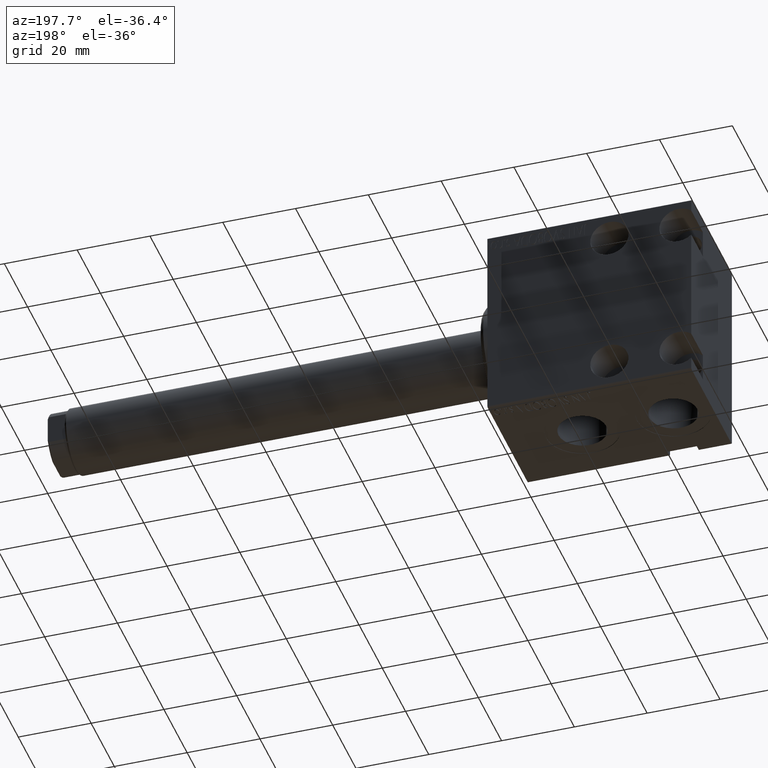
[diagram: clean part render]
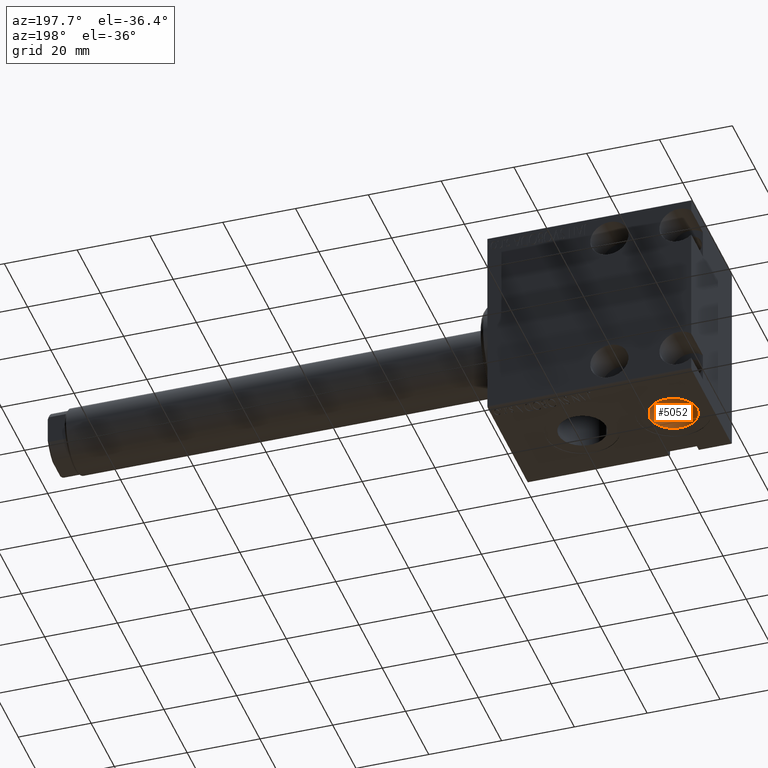
[diagram: same view with one face highlighted and labeled with its STEP entity id]
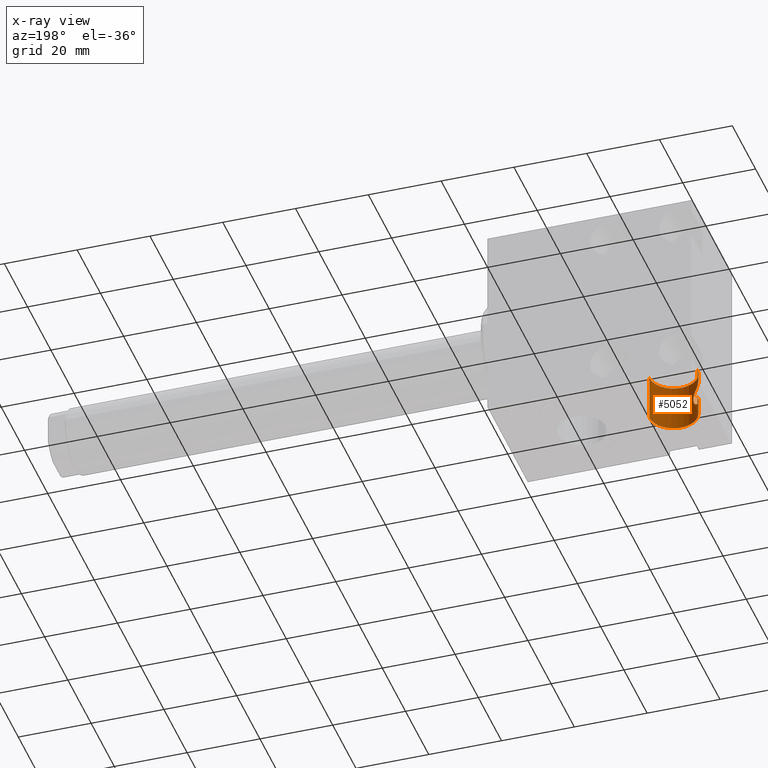
[diagram: x-ray of the same camera — body ghosted, the highlighted face saturated]
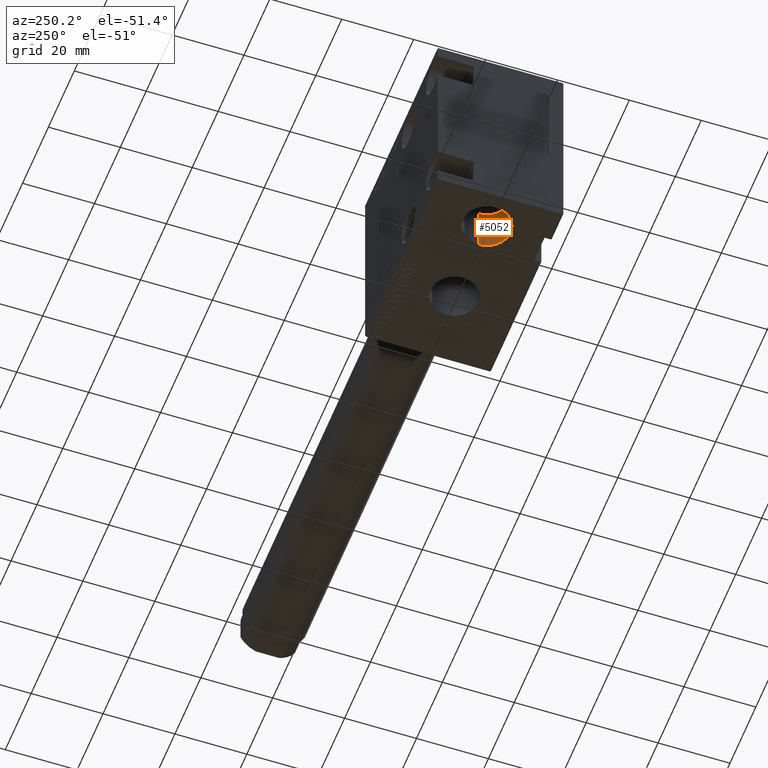
[diagram: same view with one face highlighted and labeled with its STEP entity id]
A machine part, auxiliary view. The second image highlights one B-rep face of the part: STEP entity #5052.
The next image is the same camera in x-ray: the body ghosted, the highlighted face saturated — about 1% of this face is hidden behind the body in this view.
A second angle (auxiliary view) of the same face is appended — the face is thin or edge-on in the first view.
In plain terms, the highlighted cylindrical surface (edge-blend (fillet) strip) has radius 6.58 mm, axis along (-0, 0, -1).
Its self-contained STEP definition (entity closure, byte-faithful):
#33 = CARTESIAN_POINT ( 'NONE',  ( 49.97893463888712517, 4.822081745161653110, -17.94414762556919030 ) ) ;
#106 = VERTEX_POINT ( 'NONE', #6949 ) ;
#248 = CARTESIAN_POINT ( 'NONE',  ( 50.26324171798150076, 4.541858146288443088, -17.63866551675688399 ) ) ;
#256 = VECTOR ( 'NONE', #42723, 1000.000000000000000 ) ;
#464 = CARTESIAN_POINT ( 'NONE',  ( 49.31159436465515711, 5.363680480734243083, -19.34892535383430001 ) ) ;
#676 = CARTESIAN_POINT ( 'NONE',  ( 52.07999999999999829, -4.982785615329280656E-15, -23.22274727522962579 ) ) ;
#1010 = VERTEX_POINT ( 'NONE', #39346 ) ;
#2985 = LINE ( 'NONE', #39899, #256 ) ;
#3312 = CARTESIAN_POINT ( 'NONE',  ( 52.07999999999999829, -5.944845806260188257E-15, -16.77725272477036711 ) ) ;
#3523 = CARTESIAN_POINT ( 'NONE',  ( 50.16605431984694974, 4.641256827701073284, -17.73394680059119466 ) ) ;
#3730 = CARTESIAN_POINT ( 'NONE',  ( 50.55315012297781863, 4.224246935768990241, -17.38499939348683654 ) ) ;
#4159 = CARTESIAN_POINT ( 'NONE',  ( 52.08000000000000540, 0.3310651701672402414, -23.22274727522962934 ) ) ;
#4321 = ORIENTED_EDGE ( 'NONE', *, *, #19663, .T. ) ;
#5052 = ADVANCED_FACE ( 'NONE', ( #6468 ), #7112, .F. ) ;
#5578 = EDGE_LOOP ( 'NONE', ( #19397, #20746, #35303, #12571, #36016, #4321 ) ) ;
#6468 = FACE_OUTER_BOUND ( 'NONE', #5578, .T. ) ;
#6587 = CARTESIAN_POINT ( 'NONE',  ( 49.44661169182467830, 5.265386557473822116, -18.87489598055588402 ) ) ;
#6802 = CARTESIAN_POINT ( 'NONE',  ( 51.56310192973119655, 2.577228159191529144, -23.11570318743409302 ) ) ;
#6949 = CARTESIAN_POINT ( 'NONE',  ( 38.91999999999999460, -5.788603209277299718E-15, -27.40000000000000213 ) ) ;
#7009 = CARTESIAN_POINT ( 'NONE',  ( 49.24956655112059423, 5.407138889644135027, -19.84121779064317437 ) ) ;
#7112 = CYLINDRICAL_SURFACE ( 'NONE', #32405, 6.580000000000002736 ) ;
#7222 = CARTESIAN_POINT ( 'NONE',  ( 52.05515427865749700, 0.6598028439512148013, -23.21980100920596612 ) ) ;
#7440 = CARTESIAN_POINT ( 'NONE',  ( 50.26935849136269496, 4.535453516409063468, -22.36711579894430457 ) ) ;
#9421 = AXIS2_PLACEMENT_3D ( 'NONE', #30050, #13884, #40525 ) ;
#9742 = EDGE_CURVE ( 'NONE', #12926, #32662, #10117, .T. ) ;
#9864 = CARTESIAN_POINT ( 'NONE',  ( 50.17362464172516212, 4.633617290356827567, -22.27373501052045768 ) ) ;
#10087 = CARTESIAN_POINT ( 'NONE',  ( 49.35322264741746068, 5.334124119426110866, -20.82893756483926140 ) ) ;
#10117 = CIRCLE ( 'NONE', #9421, 6.580000000000002736 ) ;
#10302 = CARTESIAN_POINT ( 'NONE',  ( 49.26198675014821760, 5.398590148528583654, -19.67581041941062026 ) ) ;
#10725 = CARTESIAN_POINT ( 'NONE',  ( 49.89663315046059466, 4.896786373188753316, -21.95129343600461880 ) ) ;
#12571 = ORIENTED_EDGE ( 'NONE', *, *, #14422, .T. ) ;
#12926 = VERTEX_POINT ( 'NONE', #15379 ) ;
#13351 = CARTESIAN_POINT ( 'NONE',  ( 51.88109536221364237, 1.639409872837848559, -23.19212115056386381 ) ) ;
#13572 = CARTESIAN_POINT ( 'NONE',  ( 51.55968756501483341, 2.585592968006736214, -16.88523190528145790 ) ) ;
#13884 = DIRECTION ( 'NONE',  ( 0.000000000000000000, 0.000000000000000000, -1.000000000000000000 ) ) ;
#13964 = CARTESIAN_POINT ( 'NONE',  ( 52.07999999999999829, -4.982785615438341465E-15, -14.50000000000000000 ) ) ;
#13995 = CARTESIAN_POINT ( 'NONE',  ( 51.27087239358852599, 3.178385785067475044, -16.98749056658380852 ) ) ;
#14422 = EDGE_CURVE ( 'NONE', #106, #33513, #40273, .T. ) ;
#15379 = CARTESIAN_POINT ( 'NONE',  ( 38.91999999999999460, -5.788603209277299718E-15, -14.50000000000000000 ) ) ;
#15705 = LINE ( 'NONE', #29026, #26538 ) ;
#16135 = DIRECTION ( 'NONE',  ( -1.000000000000000000, 0.000000000000000000, 0.000000000000000000 ) ) ;
#16626 = CARTESIAN_POINT ( 'NONE',  ( 49.25045640217459209, 5.406521716276747824, -20.17605624508707862 ) ) ;
#16685 = EDGE_CURVE ( 'NONE', #32662, #27396, #17024, .T. ) ;
#16837 = CARTESIAN_POINT ( 'NONE',  ( 49.26402932003843205, 5.397172517940136416, -20.34375458485810029 ) ) ;
#17024 = LINE ( 'NONE', #13964, #28512 ) ;
#17058 = CARTESIAN_POINT ( 'NONE',  ( 49.50220694883640249, 5.224362076535531862, -21.29735022060635075 ) ) ;
#19397 = ORIENTED_EDGE ( 'NONE', *, *, #16685, .F. ) ;
#19663 = EDGE_CURVE ( 'NONE', #1010, #27396, #21118, .T. ) ;
#19800 = DIRECTION ( 'NONE',  ( -0.000000000000000000, -0.000000000000000000, -1.000000000000000000 ) ) ;
#19917 = CARTESIAN_POINT ( 'NONE',  ( 49.50583749899756469, 5.220854135736300528, -18.72628248775956905 ) ) ;
#20099 = DIRECTION ( 'NONE',  ( -0.000000000000000000, -0.000000000000000000, -1.000000000000000000 ) ) ;
#20127 = CARTESIAN_POINT ( 'NONE',  ( 50.84332866628704295, 3.843215917744076116, -22.79791692509125767 ) ) ;
#20339 = CARTESIAN_POINT ( 'NONE',  ( 49.88942398913818010, 4.903226779246405265, -18.05839217657377205 ) ) ;
#20746 = ORIENTED_EDGE ( 'NONE', *, *, #9742, .F. ) ;
#21118 = B_SPLINE_CURVE_WITH_KNOTS ( 'NONE', 3,
 ( #676, #4159, #7222, #37377, #13351, #36944, #6802, #37153, #26890, #20127, #30158, #26666, #39789, #7440, #9864, #23610, #10725, #33437, #17058, #10087, #29949, #16837, #16626, #7009, #10302, #464, #30590, #6587, #19917, #23183, #33647, #20339, #33, #3523, #248, #3730, #24039, #40003, #13995, #13572, #27306, #33231, #36513, #40222, #30379, #3312 ),
 .UNSPECIFIED., .F., .F.,
 ( 4, 2, 2, 2, 2, 2, 2, 2, 2, 2, 2, 2, 2, 2, 2, 2, 2, 2, 2, 2, 2, 2, 4 ),
 ( 0.01581004849525909778, 0.01679723498726052450, 0.01778442147926195122, 0.01877160797126337793, 0.01975879446326480465, 0.02025238770926551801, 0.02074598095526622790, 0.02123957420126694126, 0.02173316744726765115, 0.02272035393926907787, 0.02321394718526978776, 0.02370754043127049765, 0.02420113367727121101, 0.02469472692327192437, 0.02518832016927263426, 0.02568191341527334762, 0.02617550666127405751, 0.02666909990727477087, 0.02765628639927619412, 0.02864347289127761736, 0.02963065938327903714, 0.03061784587528045692, 0.03160503236728187670 ),
 .UNSPECIFIED. ) ;
#21950 = EDGE_CURVE ( 'NONE', #12926, #106, #15705, .T. ) ;
#23183 = CARTESIAN_POINT ( 'NONE',  ( 49.64321101252517110, 5.112519386828774159, -18.44239861824675231 ) ) ;
#23610 = CARTESIAN_POINT ( 'NONE',  ( 49.98765386387972853, 4.813952563459640288, -22.06640027535239668 ) ) ;
#24039 = CARTESIAN_POINT ( 'NONE',  ( 50.74902177205232334, 3.980519429084871774, -17.25437967695921415 ) ) ;
#24641 = CARTESIAN_POINT ( 'NONE',  ( 52.07999999999999829, -4.982785615438341465E-15, -14.50000000000000000 ) ) ;
#24870 = CARTESIAN_POINT ( 'NONE',  ( 52.07999999999999829, -4.982785615438341465E-15, -27.40000000000000213 ) ) ;
#26538 = VECTOR ( 'NONE', #28802, 1000.000000000000000 ) ;
#26666 = CARTESIAN_POINT ( 'NONE',  ( 50.56109864371553186, 4.207729554179517883, -22.61082936947150301 ) ) ;
#26890 = CARTESIAN_POINT ( 'NONE',  ( 51.11132958892269329, 3.451037459945252461, -22.94545252890488740 ) ) ;
#27198 = CARTESIAN_POINT ( 'NONE',  ( 45.50000000000000000, -5.788603209277299718E-15, -14.50000000000000000 ) ) ;
#27306 = CARTESIAN_POINT ( 'NONE',  ( 51.68231819266650007, 2.276791758663134324, -16.85293161075120238 ) ) ;
#27396 = VERTEX_POINT ( 'NONE', #33333 ) ;
#28512 = VECTOR ( 'NONE', #20099, 1000.000000000000000 ) ;
#28802 = DIRECTION ( 'NONE',  ( -0.000000000000000000, -0.000000000000000000, -1.000000000000000000 ) ) ;
#29026 = CARTESIAN_POINT ( 'NONE',  ( 38.91999999999999460, -5.788603209277299718E-15, -14.50000000000000000 ) ) ;
#29104 = AXIS2_PLACEMENT_3D ( 'NONE', #35607, #32314, #16135 ) ;
#29949 = CARTESIAN_POINT ( 'NONE',  ( 49.31541831185845837, 5.360967358234197455, -20.66941237494937056 ) ) ;
#30050 = CARTESIAN_POINT ( 'NONE',  ( 45.50000000000000000, -5.788603209277299718E-15, -14.50000000000000000 ) ) ;
#30158 = CARTESIAN_POINT ( 'NONE',  ( 50.75080135170159679, 3.968474851564991912, -22.74154565066636380 ) ) ;
#30379 = CARTESIAN_POINT ( 'NONE',  ( 52.08000000000002672, 0.3337827765552043302, -16.77725272477037421 ) ) ;
#30590 = CARTESIAN_POINT ( 'NONE',  ( 49.34940643312729236, 5.336863269587434289, -19.18587507626201472 ) ) ;
#32314 = DIRECTION ( 'NONE',  ( 0.000000000000000000, 0.000000000000000000, -1.000000000000000000 ) ) ;
#32405 = AXIS2_PLACEMENT_3D ( 'NONE', #27198, #19800, #33120 ) ;
#32662 = VERTEX_POINT ( 'NONE', #24641 ) ;
#33120 = DIRECTION ( 'NONE',  ( -1.000000000000000000, 0.000000000000000000, 0.000000000000000000 ) ) ;
#33231 = CARTESIAN_POINT ( 'NONE',  ( 51.87874537255436280, 1.648164560900307496, -16.80834123494841137 ) ) ;
#33333 = CARTESIAN_POINT ( 'NONE',  ( 52.07999999999999829, -5.944845806260188257E-15, -16.77725272477036711 ) ) ;
#33437 = CARTESIAN_POINT ( 'NONE',  ( 49.64329012989163203, 5.116595184011292652, -21.57859710652439489 ) ) ;
#33513 = VERTEX_POINT ( 'NONE', #24870 ) ;
#33647 = CARTESIAN_POINT ( 'NONE',  ( 49.72185810430461572, 5.048226416500992464, -18.30681493750415001 ) ) ;
#34793 = EDGE_CURVE ( 'NONE', #1010, #33513, #2985, .T. ) ;
#35303 = ORIENTED_EDGE ( 'NONE', *, *, #21950, .T. ) ;
#35607 = CARTESIAN_POINT ( 'NONE',  ( 45.50000000000000000, -5.788603209277299718E-15, -27.40000000000000213 ) ) ;
#36016 = ORIENTED_EDGE ( 'NONE', *, *, #34793, .F. ) ;
#36513 = CARTESIAN_POINT ( 'NONE',  ( 51.95350266568336650, 1.326456279840264374, -16.79587030214877430 ) ) ;
#36944 = CARTESIAN_POINT ( 'NONE',  ( 51.68427600607627426, 2.271733486457392814, -23.14758236687901771 ) ) ;
#37153 = CARTESIAN_POINT ( 'NONE',  ( 51.27773050926689535, 3.165618447811889169, -23.01520175747550567 ) ) ;
#37377 = CARTESIAN_POINT ( 'NONE',  ( 51.95619421034916030, 1.312609510913926858, -23.20457197107861802 ) ) ;
#39346 = CARTESIAN_POINT ( 'NONE',  ( 52.07999999999999829, -4.982785615329280656E-15, -23.22274727522962579 ) ) ;
#39789 = CARTESIAN_POINT ( 'NONE',  ( 50.46313206504088100, 4.322550071844609931, -22.53577754568550873 ) ) ;
#39899 = CARTESIAN_POINT ( 'NONE',  ( 52.07999999999999829, -4.982785615438341465E-15, -14.50000000000000000 ) ) ;
#40003 = CARTESIAN_POINT ( 'NONE',  ( 51.10715194871909262, 3.457833355264091857, -17.05647659783645764 ) ) ;
#40222 = CARTESIAN_POINT ( 'NONE',  ( 52.05441329151444307, 0.6684678917710725754, -16.78028589121823089 ) ) ;
#40273 = CIRCLE ( 'NONE', #29104, 6.580000000000002736 ) ;
#40525 = DIRECTION ( 'NONE',  ( -1.000000000000000000, 0.000000000000000000, 0.000000000000000000 ) ) ;
#42723 = DIRECTION ( 'NONE',  ( -0.000000000000000000, -0.000000000000000000, -1.000000000000000000 ) ) ;